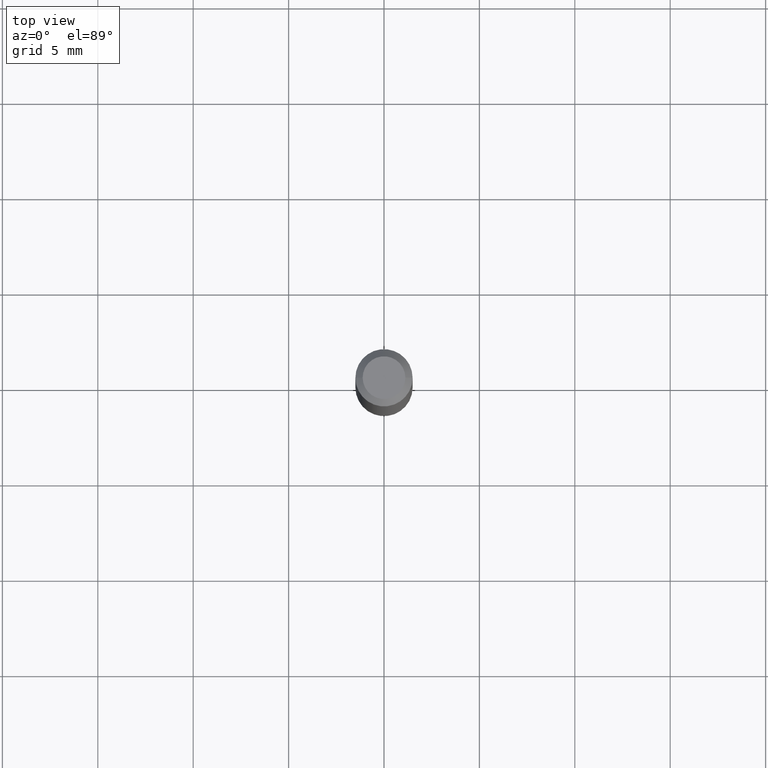
[diagram: clean part render]
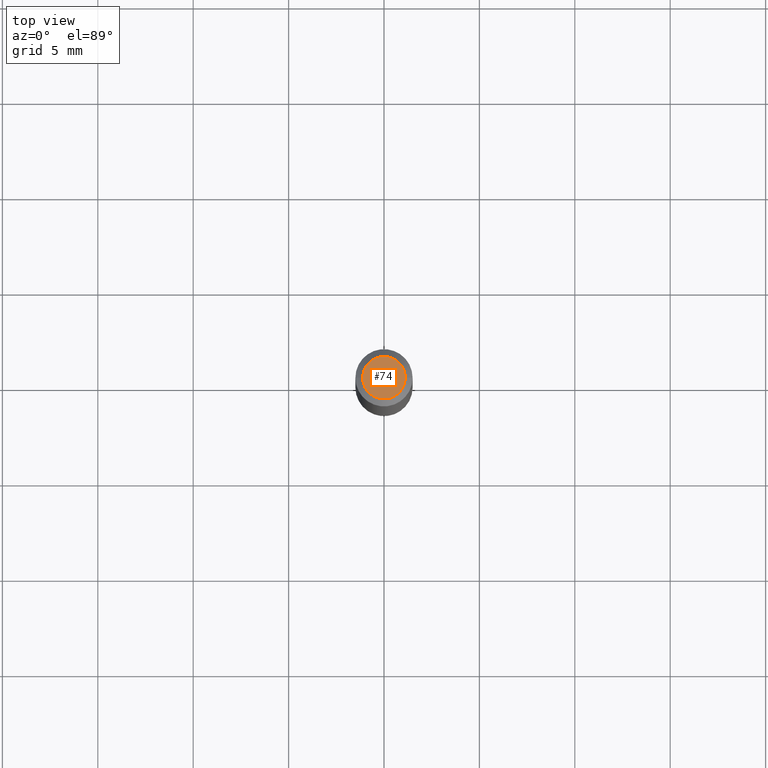
[diagram: same view with one face highlighted and labeled with its STEP entity id]
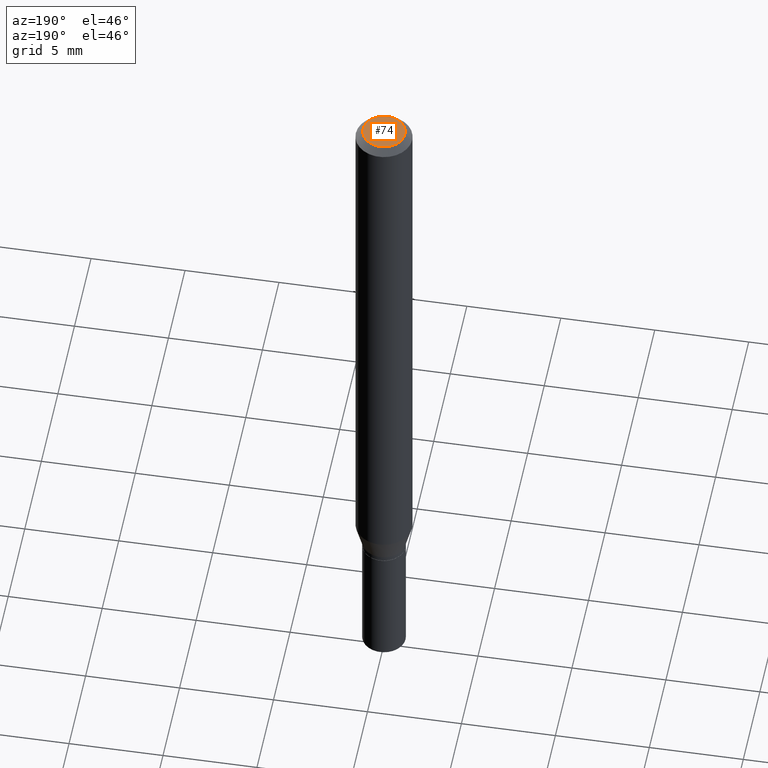
[diagram: same view with one face highlighted and labeled with its STEP entity id]
A machine part, top view. The second image highlights one B-rep face of the part: STEP entity #74.
A second angle (auxiliary view) of the same face is appended — the face is thin or edge-on in the first view.
In plain terms, the highlighted planar face has unit normal (0, -0, -1).
Its self-contained STEP definition (entity closure, byte-faithful):
#38 = DIRECTION ( 'NONE',  ( 2.438088387897960049E-29, -3.491481338843145188E-15, -1.000000000000000000 ) ) ;
#42 = DIRECTION ( 'NONE',  ( -1.000000000000000000, 6.982962677686265922E-15, -4.876176775795935793E-29 ) ) ;
#45 = DIRECTION ( 'NONE',  ( -2.445468806185136597E-29, 3.491481338843145583E-15, 1.000000000000000000 ) ) ;
#47 = CIRCLE ( 'NONE', #433, 0.04404999999999999888 ) ;
#74 = ADVANCED_FACE ( 'NONE', ( #447 ), #118, .F. ) ;
#114 = ORIENTED_EDGE ( 'NONE', *, *, #302, .T. ) ;
#118 = PLANE ( 'NONE',  #299 ) ;
#146 = CARTESIAN_POINT ( 'NONE',  ( 5.113335882009178277E-45, -7.300488465081862281E-31, -2.090942999999186255E-16 ) ) ;
#156 = EDGE_CURVE ( 'NONE', #196, #234, #47, .T. ) ;
#169 = EDGE_LOOP ( 'NONE', ( #114, #303 ) ) ;
#196 = VERTEX_POINT ( 'NONE', #316 ) ;
#201 = CARTESIAN_POINT ( 'NONE',  ( -0.04404999999999999888, 3.337856159934030687E-16, -2.090942999999208688E-16 ) ) ;
#218 = CARTESIAN_POINT ( 'NONE',  ( 5.113335882009178277E-45, -7.300488465081862281E-31, -2.090942999999186255E-16 ) ) ;
#234 = VERTEX_POINT ( 'NONE', #201 ) ;
#243 = CIRCLE ( 'NONE', #280, 0.04404999999999999888 ) ;
#246 = DIRECTION ( 'NONE',  ( -2.445468806185136597E-29, 3.491481338843145583E-15, 1.000000000000000000 ) ) ;
#248 = CARTESIAN_POINT ( 'NONE',  ( 3.075995059520799729E-16, 0.04404999999999999888, -2.583469029759998662E-16 ) ) ;
#260 = DIRECTION ( 'NONE',  ( 1.000000000000000000, -6.982962677686265922E-15, 4.888540261209747396E-29 ) ) ;
#280 = AXIS2_PLACEMENT_3D ( 'NONE', #146, #45, #260 ) ;
#299 = AXIS2_PLACEMENT_3D ( 'NONE', #248, #38, #42 ) ;
#302 = EDGE_CURVE ( 'NONE', #234, #196, #243, .T. ) ;
#303 = ORIENTED_EDGE ( 'NONE', *, *, #156, .T. ) ;
#316 = CARTESIAN_POINT ( 'NONE',  ( 0.04404999999999999888, -3.798447818264464023E-16, -2.090942999999162343E-16 ) ) ;
#318 = DIRECTION ( 'NONE',  ( 1.000000000000000000, -6.982962677686265922E-15, 4.888540261209747396E-29 ) ) ;
#433 = AXIS2_PLACEMENT_3D ( 'NONE', #218, #246, #318 ) ;
#447 = FACE_OUTER_BOUND ( 'NONE', #169, .T. ) ;